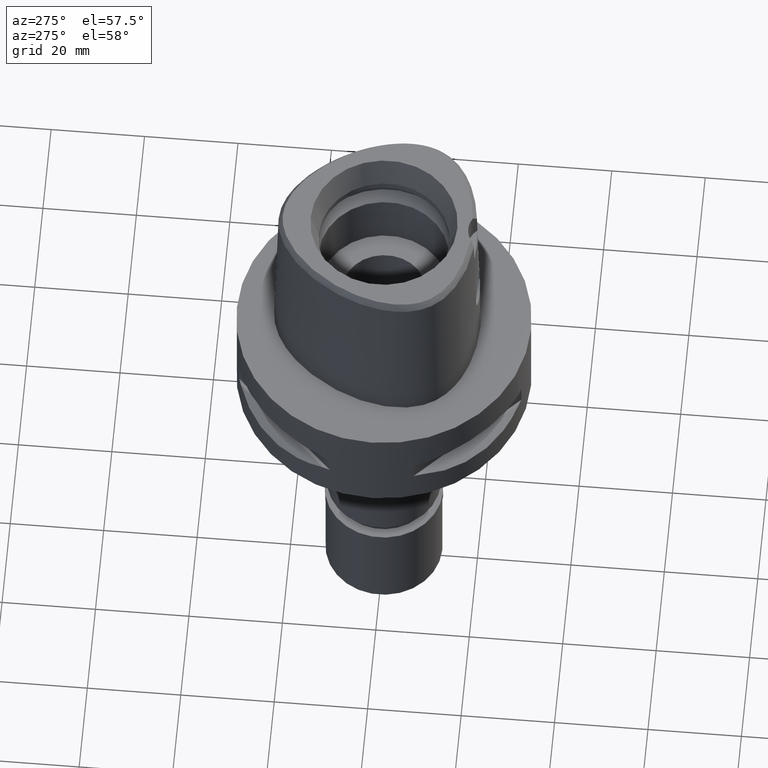
[diagram: clean part render]
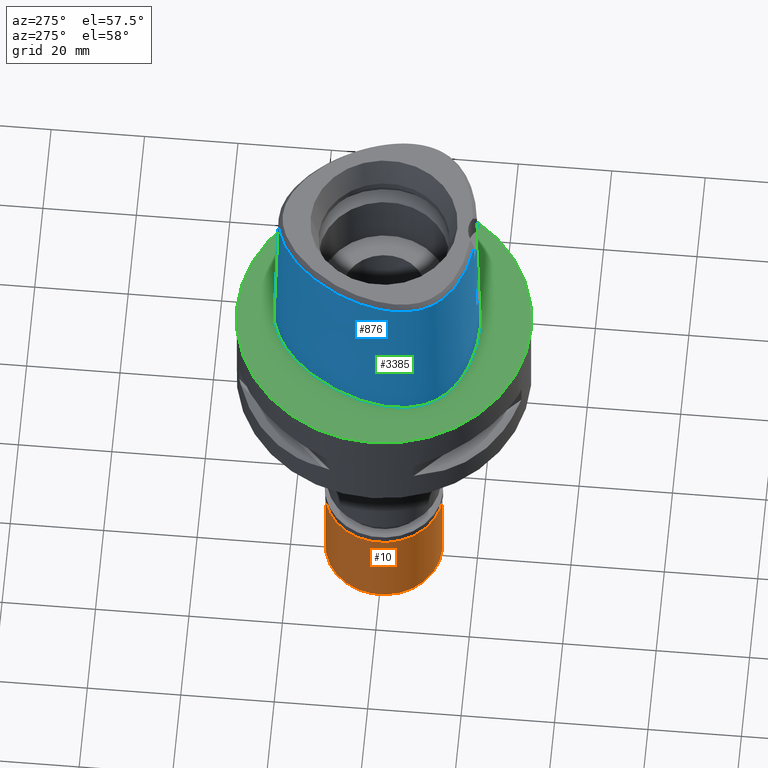
[diagram: same view with three faces highlighted in distinct colors, each labeled with its STEP entity id]
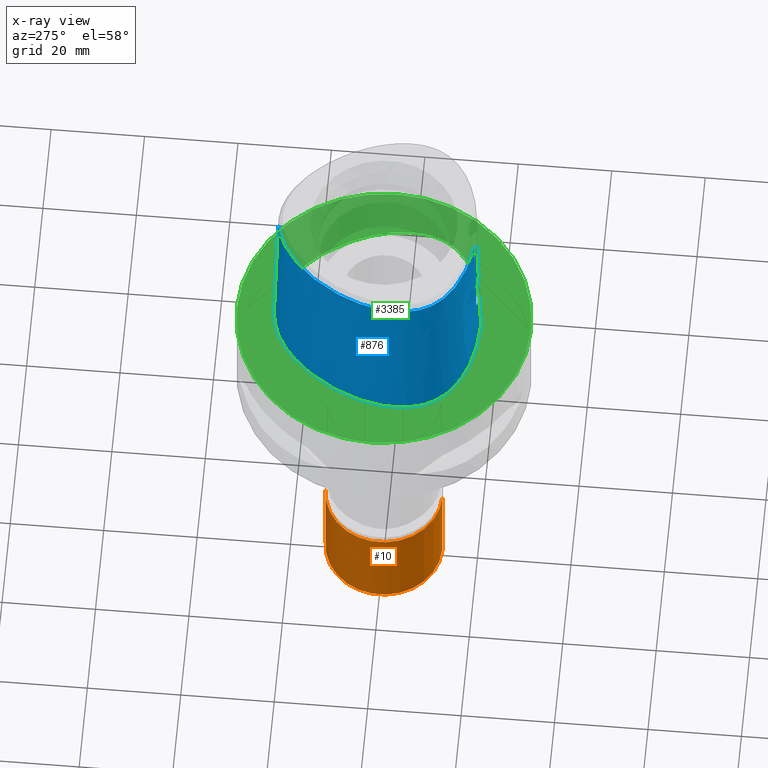
[diagram: x-ray of the same camera — body ghosted, the three highlighted faces saturated]
A machine part, auxiliary view with three faces highlighted in distinct colors.
The next image is the same camera in x-ray (body ghosted, the three faces saturated) — at least one of them is partly hidden behind the body in this view.
Their STEP definitions:

[orange] entity #10 — the highlighted cylindrical surface (partial cylindrical patch) has radius 12.5 mm, axis along (0, 0, -1).
#10 = ADVANCED_FACE ( 'NONE', ( #3239 ), #3290, .T. ) ;
#36 = CARTESIAN_POINT ( 'NONE',  ( 0.0000000000000000000, -12.50000000000000000, -2.100000000000000089 ) ) ;
#268 = ORIENTED_EDGE ( 'NONE', *, *, #1319, .T. ) ;
#469 = VERTEX_POINT ( 'NONE', #3411 ) ;
#477 = CARTESIAN_POINT ( 'NONE',  ( 0.0000000000000000000, 0.0000000000000000000, -2.100000000000000089 ) ) ;
#730 = ORIENTED_EDGE ( 'NONE', *, *, #4245, .T. ) ;
#747 = VERTEX_POINT ( 'NONE', #1795 ) ;
#858 = DIRECTION ( 'NONE',  ( 0.0000000000000000000, 0.0000000000000000000, -1.000000000000000000 ) ) ;
#1053 = AXIS2_PLACEMENT_3D ( 'NONE', #1271, #2068, #2866 ) ;
#1056 = ORIENTED_EDGE ( 'NONE', *, *, #2048, .T. ) ;
#1199 = VERTEX_POINT ( 'NONE', #3916 ) ;
#1271 = CARTESIAN_POINT ( 'NONE',  ( 0.0000000000000000000, 0.0000000000000000000, 0.0000000000000000000 ) ) ;
#1319 = EDGE_CURVE ( 'NONE', #3557, #1199, #3271, .T. ) ;
#1656 = LINE ( 'NONE', #36, #2715 ) ;
#1795 = CARTESIAN_POINT ( 'NONE',  ( 0.0000000000000000000, -12.50000000000000000, -2.100000000000000089 ) ) ;
#1931 = ORIENTED_EDGE ( 'NONE', *, *, #4446, .F. ) ;
#1934 = VECTOR ( 'NONE', #2536, 1000.000000000000000 ) ;
#1967 = DIRECTION ( 'NONE',  ( 0.0000000000000000000, -1.000000000000000000, 0.0000000000000000000 ) ) ;
#2048 = EDGE_CURVE ( 'NONE', #747, #3557, #3529, .T. ) ;
#2068 = DIRECTION ( 'NONE',  ( 0.0000000000000000000, 0.0000000000000000000, -1.000000000000000000 ) ) ;
#2462 = DIRECTION ( 'NONE',  ( 0.0000000000000000000, 0.0000000000000000000, 1.000000000000000000 ) ) ;
#2536 = DIRECTION ( 'NONE',  ( 0.0000000000000000000, 0.0000000000000000000, -1.000000000000000000 ) ) ;
#2715 = VECTOR ( 'NONE', #3500, 1000.000000000000000 ) ;
#2866 = DIRECTION ( 'NONE',  ( 0.0000000000000000000, -1.000000000000000000, 0.0000000000000000000 ) ) ;
#2880 = CIRCLE ( 'NONE', #4797, 12.50000000000000000 ) ;
#3001 = EDGE_LOOP ( 'NONE', ( #730, #1931, #1056, #268 ) ) ;
#3057 = AXIS2_PLACEMENT_3D ( 'NONE', #477, #858, #1967 ) ;
#3239 = FACE_OUTER_BOUND ( 'NONE', #3001, .T. ) ;
#3242 = DIRECTION ( 'NONE',  ( 0.0000000000000000000, 1.000000000000000000, 0.0000000000000000000 ) ) ;
#3271 = LINE ( 'NONE', #3624, #1934 ) ;
#3290 = CYLINDRICAL_SURFACE ( 'NONE', #1053, 12.50000000000000000 ) ;
#3411 = CARTESIAN_POINT ( 'NONE',  ( 0.0000000000000000000, -12.50000000000000000, -22.89999999999999858 ) ) ;
#3500 = DIRECTION ( 'NONE',  ( 0.0000000000000000000, 0.0000000000000000000, -1.000000000000000000 ) ) ;
#3529 = CIRCLE ( 'NONE', #3057, 12.50000000000000000 ) ;
#3557 = VERTEX_POINT ( 'NONE', #3960 ) ;
#3624 = CARTESIAN_POINT ( 'NONE',  ( 0.0000000000000000000, 12.50000000000000000, -2.100000000000000089 ) ) ;
#3916 = CARTESIAN_POINT ( 'NONE',  ( 0.0000000000000000000, 12.50000000000000000, -22.89999999999999858 ) ) ;
#3960 = CARTESIAN_POINT ( 'NONE',  ( 0.0000000000000000000, 12.50000000000000000, -2.100000000000000089 ) ) ;
#3962 = CARTESIAN_POINT ( 'NONE',  ( 0.0000000000000000000, 0.0000000000000000000, -22.89999999999999858 ) ) ;
#4245 = EDGE_CURVE ( 'NONE', #1199, #469, #2880, .T. ) ;
#4446 = EDGE_CURVE ( 'NONE', #747, #469, #1656, .T. ) ;
#4797 = AXIS2_PLACEMENT_3D ( 'NONE', #3962, #2462, #3242 ) ;

[blue] entity #876 — the highlighted face is a freeform B-spline surface patch.
#7 = LINE ( 'NONE', #360, #1698 ) ;
#34 = CARTESIAN_POINT ( 'NONE',  ( -21.07430010672671727, -0.4408303445192858216, 36.52186244848007846 ) ) ;
#54 = CARTESIAN_POINT ( 'NONE',  ( -18.90964971337917433, -12.28759719904485515, 36.52186244848007846 ) ) ;
#86 = CARTESIAN_POINT ( 'NONE',  ( -21.32871527669944456, -4.105831244393725932, 36.52186244848007846 ) ) ;
#95 = VERTEX_POINT ( 'NONE', #398 ) ;
#149 = EDGE_CURVE ( 'NONE', #3852, #1748, #237, .T. ) ;
#155 = CARTESIAN_POINT ( 'NONE',  ( -3.538029056165846509, -20.05893062327526621, 17.47481775326744113 ) ) ;
#166 = CARTESIAN_POINT ( 'NONE',  ( -20.46725053161999952, 4.555493680873999196, 11.93047864450999995 ) ) ;
#184 = CARTESIAN_POINT ( 'NONE',  ( -4.000927221588382210, -20.04208148377432153, 16.14235809081394635 ) ) ;
#191 = CARTESIAN_POINT ( 'NONE',  ( -20.16779751909999518, 4.447573709555999955, 24.59139475704000333 ) ) ;
#206 = CARTESIAN_POINT ( 'NONE',  ( -2.139795632157915684, -20.13619945463955219, 18.93891220839399026 ) ) ;
#212 = CARTESIAN_POINT ( 'NONE',  ( -18.89485300815999835, -12.27684390043000029, 37.25231086958000049 ) ) ;
#230 = CARTESIAN_POINT ( 'NONE',  ( -1.942511500016516290, -20.14483646775817505, 19.05436919695220510 ) ) ;
#235 = CARTESIAN_POINT ( 'NONE',  ( -19.64947365061150109, -12.82525390041814006, 3.961989510884063315E-07 ) ) ;
#237 = B_SPLINE_CURVE_WITH_KNOTS ( 'NONE', 3,
 ( #4850, #2947, #2569, #669 ),
 .UNSPECIFIED., .F., .F.,
 ( 4, 4 ),
 ( 0.0000000000000000000, 1.000000000000000000 ),
 .UNSPECIFIED. ) ;
#239 = CARTESIAN_POINT ( 'NONE',  ( -21.31039852050999883, -4.105938495921999554, 37.25231086958000049 ) ) ;
#255 = CARTESIAN_POINT ( 'NONE',  ( -2.093752964483913015, -20.13827006262202701, 18.96698002592549059 ) ) ;
#263 = CARTESIAN_POINT ( 'NONE',  ( -22.07548128586000047, -6.850245534728999885, -0.7304374680310000700 ) ) ;
#283 = CARTESIAN_POINT ( 'NONE',  ( -3.378390900463339008, -20.18047920803157069, 13.26637903256858841 ) ) ;
#286 = CARTESIAN_POINT ( 'NONE',  ( -5.098437013586353928, 22.52602538139820254, 3.961989510884063315E-07 ) ) ;
#304 = CARTESIAN_POINT ( 'NONE',  ( -2.086978290693807025, -20.31270092342546008, 12.02657741057071661 ) ) ;
#329 = CARTESIAN_POINT ( 'NONE',  ( -1.638500254464691164, -20.34202489575005046, 11.79604700464739864 ) ) ;
#336 = CARTESIAN_POINT ( 'NONE',  ( -14.52531267946000071, -16.95413756378999892, 11.93047864450999995 ) ) ;
#360 = CARTESIAN_POINT ( 'NONE',  ( -1.574543175628000215E-11, 22.56201468012000078, 36.52186680743999858 ) ) ;
#374 = CARTESIAN_POINT ( 'NONE',  ( -3.646836020275710410, -20.14171045812461713, 13.73346198750058100 ) ) ;
#382 = CARTESIAN_POINT ( 'NONE',  ( -6.344715575757000181, -20.31619964444000104, -0.7304374680310000700 ) ) ;
#391 = VERTEX_POINT ( 'NONE', #2877 ) ;
#398 = CARTESIAN_POINT ( 'NONE',  ( -1.131694550467999927E-11, -20.67499999999999716, 1.488068927338999721E-13 ) ) ;
#441 = CARTESIAN_POINT ( 'NONE',  ( -0.5985508230246999739, 23.20171286481000195, 11.93047864450999995 ) ) ;
#485 = VECTOR ( 'NONE', #4844, 1000.000000000000114 ) ;
#520 = CARTESIAN_POINT ( 'NONE',  ( -7.300578999876362829, -19.07170748891811485, 36.52186244848007846 ) ) ;
#522 = CARTESIAN_POINT ( 'NONE',  ( 2.041042029990999821E-08, -19.88004246002000031, 31.80000004972000127 ) ) ;
#541 = CARTESIAN_POINT ( 'NONE',  ( -19.15132538609999813, -12.46323161482999886, 24.59139475704000333 ) ) ;
#560 = CARTESIAN_POINT ( 'NONE',  ( -4.019571720748293941, -20.04316385331960859, 16.01229760803275681 ) ) ;
#568 = CARTESIAN_POINT ( 'NONE',  ( -10.75753573473000024, 19.18839675345000018, -0.7304374680310000700 ) ) ;
#590 = CARTESIAN_POINT ( 'NONE',  ( -4.048198548691897436, -20.04948742386073590, 15.62496296514492755 ) ) ;
#596 = CARTESIAN_POINT ( 'NONE',  ( -21.62788420036000048, -4.104079497307999702, 24.59139475704000333 ) ) ;
#612 = CARTESIAN_POINT ( 'NONE',  ( -1.515693961805478995, -20.16085602489246398, 19.25569561036461153 ) ) ;
#617 = CARTESIAN_POINT ( 'NONE',  ( -21.68301110806000054, -0.3332743865255000104, 11.93047864450999995 ) ) ;
#633 = CARTESIAN_POINT ( 'NONE',  ( -2.002411518437843707, -20.14229940476294090, 19.02105893399036063 ) ) ;
#638 = CARTESIAN_POINT ( 'NONE',  ( -14.67337963928112821, -17.21410155387033925, 3.961989510884063315E-07 ) ) ;
#641 = CARTESIAN_POINT ( 'NONE',  ( -21.13154906879999828, -6.714587103788000277, 37.25231086958000049 ) ) ;
#659 = CARTESIAN_POINT ( 'NONE',  ( -3.521011169345658498, -20.16057871302737681, 13.49750028717983774 ) ) ;
#669 = CARTESIAN_POINT ( 'NONE',  ( -3.736722311398999796, -19.67781602443999844, 31.80000000000000071 ) ) ;
#683 = CARTESIAN_POINT ( 'NONE',  ( -3.765419383810436393, -20.12204246540857255, 14.00846937286263127 ) ) ;
#692 = CARTESIAN_POINT ( 'NONE',  ( -1.853278701395000061, -20.08023943164999991, 24.59139475704000333 ) ) ;
#710 = CARTESIAN_POINT ( 'NONE',  ( -10.74572890418390259, 19.17433592987496027, 3.961989510884063315E-07 ) ) ;
#714 = CARTESIAN_POINT ( 'NONE',  ( 0.4560943669427999780, -20.69106767951000236, -0.7304374680310000700 ) ) ;
#745 = CARTESIAN_POINT ( 'NONE',  ( 6.839695464753724994E-09, -20.08420636276293436, 23.63333344114103340 ) ) ;
#748 = EDGE_LOOP ( 'NONE', ( #1984, #4041, #1155, #2009, #2056, #4416, #4037, #2560 ) ) ;
#760 = CARTESIAN_POINT ( 'NONE',  ( -2.875481281530258837, -20.24105621140764910, 12.64795228381852432 ) ) ;
#768 = CARTESIAN_POINT ( 'NONE',  ( -6.232237615518999796, -19.68961197084999881, 24.59139475704000333 ) ) ;
#826 = CARTESIAN_POINT ( 'NONE',  ( 0.4823619555376999490, 23.48603817685999928, -0.7304374680310000700 ) ) ;
#843 = EDGE_CURVE ( 'NONE', #3852, #1686, #1918, .T. ) ;
#874 = CARTESIAN_POINT ( 'NONE',  ( 0.7234356448029999331, 23.47140592140999615, -0.7304374680310000700 ) ) ;
#876 = ADVANCED_FACE ( 'NONE', ( #4704 ), #4771, .T. ) ;
#920 = CARTESIAN_POINT ( 'NONE',  ( -1.319284162867574217, -20.16701362633693506, 19.33020551927502950 ) ) ;
#929 = CARTESIAN_POINT ( 'NONE',  ( -19.66427014197999767, -12.83600704362000045, -0.7304374680310000700 ) ) ;
#952 = CARTESIAN_POINT ( 'NONE',  ( -16.77374388856000209, -15.44292480528999967, 11.93047864450999995 ) ) ;
#975 = CARTESIAN_POINT ( 'NONE',  ( -2.186319051418601500, -20.13404494128904787, 18.90923049425676794 ) ) ;
#977 = EDGE_CURVE ( 'NONE', #2526, #3154, #3052, .T. ) ;
#985 = CARTESIAN_POINT ( 'NONE',  ( -19.81622840152000009, -11.44090480077000116, 24.59139475704000333 ) ) ;
#999 = CARTESIAN_POINT ( 'NONE',  ( -3.732399541594809911, -20.04857871959458748, 17.07217799705327010 ) ) ;
#1002 = EDGE_CURVE ( 'NONE', #1686, #391, #7, .T. ) ;
#1003 = CARTESIAN_POINT ( 'NONE',  ( -20.93173251305011462, -10.60431640222365424, 3.961989510884063315E-07 ) ) ;
#1005 = CARTESIAN_POINT ( 'NONE',  ( -10.34823249780999888, 18.70095513390999997, 24.59139475704000333 ) ) ;
#1019 = CARTESIAN_POINT ( 'NONE',  ( -2.619825306496439854, -20.11240413268068039, 18.58924275808812254 ) ) ;
#1025 = CARTESIAN_POINT ( 'NONE',  ( -17.53318594399000219, 10.12278939437999981, 24.59139475704000333 ) ) ;
#1044 = CARTESIAN_POINT ( 'NONE',  ( -2.870523645499304166, -20.24159970796213770, 12.64295866390248158 ) ) ;
#1069 = CARTESIAN_POINT ( 'NONE',  ( -3.862388104000367584, -20.10462279265991015, 14.27969005628151677 ) ) ;
#1074 = CARTESIAN_POINT ( 'NONE',  ( -22.05732873337768396, -6.847636717334329326, 3.961989510884063315E-07 ) ) ;
#1090 = CARTESIAN_POINT ( 'NONE',  ( -1.554623920068445297, -20.34671070926031433, 11.76025144506337305 ) ) ;
#1117 = CARTESIAN_POINT ( 'NONE',  ( -1.251533273950246050, -19.88005341380272739, 31.80000012753039940 ) ) ;
#1122 = CARTESIAN_POINT ( 'NONE',  ( -14.36818039036000094, -16.67825740190000161, 24.59139475704000333 ) ) ;
#1140 = B_SPLINE_CURVE_WITH_KNOTS ( 'NONE', 3,
 ( #2898, #2129, #2179, #4352, #4425, #3688, #920, #4824, #2871, #612, #2154, #2513, #1305, #3663, #230, #633, #255, #206, #975, #2464, #1803, #4449, #2442, #1019, #1353, #2534, #4722, #4773, #2073, #2104, #1782, #3592, #4068, #155, #1702, #3221, #4748, #3244, #1328, #999, #2847, #1730, #4376, #3990, #184, #560, #2489, #4025, #590, #1754, #3269, #4798, #3011, #2203, #2583, #1069, #1896, #1843, #683, #2219, #2992, #1446, #3761, #374, #4194, #659, #2966, #2558, #1141, #1508, #283, #3711, #3410, #2243, #4120, #4890, #1822, #4548, #4933, #760, #1044, #3734, #2630, #304, #1469, #4523, #2265, #3339, #329, #3365, #3316, #2939, #1090, #4498, #2605, #4143 ),
 .UNSPECIFIED., .F., .F.,
 ( 4, 2, 2, 1, 1, 1, 2, 2, 2, 2, 1, 2, 2, 2, 1, 1, 1, 2, 2, 2, 2, 2, 1, 1, 2, 2, 2, 2, 1, 2, 2, 2, 2, 1, 1, 1, 2, 2, 2, 2, 1, 1, 2, 2, 2, 1, 1, 1, 2, 2, 2, 2, 2, 1, 1, 2, 2, 4 ),
 ( 0.0000000000000000000, 0.06249999999998449851, 0.09374999999997679634, 0.1093749999999729522, 0.1171874999999710648, 0.1210937499999702460, 0.1230468749999699685, 0.1249999999999696909, 0.1562499999999631961, 0.1718749999999597544, 0.1796874999999580891, 0.1835937499999572564, 0.1874999999999564237, 0.2187499999999492906, 0.2343749999999454880, 0.2421874999999436284, 0.2460937499999423794, 0.2480468749999419908, 0.2499999999999416023, 0.3124999999999310552, 0.3437499999999257261, 0.3593749999999230615, 0.3671874999999217293, 0.3710937499999211187, 0.3730468749999207856, 0.3749999999999204525, 0.4374999999999251155, 0.4687499999999278910, 0.4843749999999292788, 0.4921874999999299449, 0.4999999999999306111, 0.5624999999999348299, 0.5937499999999370504, 0.6093749999999380496, 0.6171874999999384936, 0.6210937499999387157, 0.6230468749999389377, 0.6249999999999391598, 0.6562499999999393818, 0.6718749999999392708, 0.6796874999999394928, 0.6835937499999393818, 0.6855468749999394928, 0.6874999999999397149, 0.7187499999999428235, 0.7343749999999443778, 0.7421874999999452660, 0.7460937499999454880, 0.7480468749999458211, 0.7499999999999460432, 0.8124999999999651390, 0.8437499999999746869, 0.8593749999999794609, 0.8671874999999817923, 0.8710937499999827915, 0.8730468749999832356, 0.8749999999999835687, 1.000000000000000000 ),
 .UNSPECIFIED. ) ;
#1141 = CARTESIAN_POINT ( 'NONE',  ( -3.403984055241810136, -20.17700956931918554, 13.30546169200884954 ) ) ;
#1151 = CARTESIAN_POINT ( 'NONE',  ( 0.6840430852549000962, -20.68668154458000075, -0.7304374680310000700 ) ) ;
#1155 = ORIENTED_EDGE ( 'NONE', *, *, #977, .F. ) ;
#1202 = CARTESIAN_POINT ( 'NONE',  ( -14.22011356155823059, -16.41829364186228801, 36.52186244848007846 ) ) ;
#1232 = CARTESIAN_POINT ( 'NONE',  ( -1.574543175628000215E-11, 22.56201468012000078, 36.52186680743999858 ) ) ;
#1258 = CARTESIAN_POINT ( 'NONE',  ( -19.88562090098653456, 4.345879983791930634, 36.52186244848007846 ) ) ;
#1305 = CARTESIAN_POINT ( 'NONE',  ( -1.654189165904782488, -20.15617929684590237, 19.19855061501283089 ) ) ;
#1313 = CARTESIAN_POINT ( 'NONE',  ( -16.39211280191932474, -14.95758113319031679, 36.52186244848007846 ) ) ;
#1328 = CARTESIAN_POINT ( 'NONE',  ( -3.724125163258915183, -20.04897958010021597, 17.09177419983912927 ) ) ;
#1335 = CARTESIAN_POINT ( 'NONE',  ( -17.88993671088000070, -13.52675035156000050, 37.25231086958000049 ) ) ;
#1353 = CARTESIAN_POINT ( 'NONE',  ( -2.695249874945359725, -20.10832530790569450, 18.52420893039018779 ) ) ;
#1359 = CARTESIAN_POINT ( 'NONE',  ( -21.05621930276000242, -0.4440251252735000209, 37.25231086958000049 ) ) ;
#1383 = CARTESIAN_POINT ( 'NONE',  ( -22.24453906861452168, -4.100468750058213097, 3.961989510884063315E-07 ) ) ;
#1386 = CARTESIAN_POINT ( 'NONE',  ( -13.69241994435000009, 15.03666404624000030, 37.25231086958000049 ) ) ;
#1404 = CARTESIAN_POINT ( 'NONE',  ( -21.55524825056646421, -8.996025387793880057, 3.961989510884063315E-07 ) ) ;
#1408 = CARTESIAN_POINT ( 'NONE',  ( -20.76670354412999941, 4.663413652191000125, -0.7304374680310000700 ) ) ;
#1429 = CARTESIAN_POINT ( 'NONE',  ( -20.65879057091999726, -10.48283623375000140, 11.93047864450999995 ) ) ;
#1446 = CARTESIAN_POINT ( 'NONE',  ( -3.744819199618690586, -20.12554889422251492, 13.95763816694174508 ) ) ;
#1469 = CARTESIAN_POINT ( 'NONE',  ( -1.976093486008362765, -20.32066596632020250, 11.96267829522251702 ) ) ;
#1478 = CARTESIAN_POINT ( 'NONE',  ( -1.836486906116000073, -19.76356485055999812, 37.25231086958000049 ) ) ;
#1496 = CARTESIAN_POINT ( 'NONE',  ( 0.0000000000000000000, -20.18628283968999781, 19.55000000000000071 ) ) ;
#1508 = CARTESIAN_POINT ( 'NONE',  ( -3.388684481479287136, -20.17908678489216356, 13.28202678387132174 ) ) ;
#1519 = CARTESIAN_POINT ( 'NONE',  ( 6.819707265817331304E-09, -19.98212988583487970, 27.71666688228189912 ) ) ;
#1573 = CARTESIAN_POINT ( 'NONE',  ( 0.4441907136239999776, 22.53710807436000252, 37.25231086958000049 ) ) ;
#1578 = EDGE_CURVE ( 'NONE', #2297, #95, #3318, .T. ) ;
#1607 = B_SPLINE_CURVE_WITH_KNOTS ( 'NONE', 3,
 ( #4641, #1117, #1900, #3017 ),
 .UNSPECIFIED., .F., .F.,
 ( 4, 4 ),
 ( 0.0000000000000000000, 1.000000000000000000 ),
 .UNSPECIFIED. ) ;
#1630 = CARTESIAN_POINT ( 'NONE',  ( -4.757642277158472766, 21.67478330407800868, 36.52186244848007846 ) ) ;
#1654 = CARTESIAN_POINT ( 'NONE',  ( -1.574543175628000215E-11, 22.56201468012000078, 36.52186680743999858 ) ) ;
#1655 = CARTESIAN_POINT ( 'NONE',  ( -3.637738201363999835, -19.56971413236999879, 36.52186244848000030 ) ) ;
#1686 = VERTEX_POINT ( 'NONE', #1654 ) ;
#1698 = VECTOR ( 'NONE', #4943, 1000.000000000000227 ) ;
#1702 = CARTESIAN_POINT ( 'NONE',  ( -3.622823166582431309, -20.05423976961980159, 17.31146791136281138 ) ) ;
#1709 = CARTESIAN_POINT ( 'NONE',  ( -10.14358087933999997, 18.45723432415000076, 37.25231086958000049 ) ) ;
#1730 = CARTESIAN_POINT ( 'NONE',  ( -3.739982804493141799, -20.04821444782767870, 17.05405992850905861 ) ) ;
#1736 = CARTESIAN_POINT ( 'NONE',  ( -21.36961520540999970, -0.3886497558994999602, 24.59139475704000333 ) ) ;
#1748 = VERTEX_POINT ( 'NONE', #2394 ) ;
#1754 = CARTESIAN_POINT ( 'NONE',  ( -4.049669244603515850, -20.05092033672185181, 15.56087890933141260 ) ) ;
#1760 = CARTESIAN_POINT ( 'NONE',  ( -0.5821289336313999474, 22.88453108562999816, 24.59139475704000333 ) ) ;
#1782 = CARTESIAN_POINT ( 'NONE',  ( -3.080358908091406445, -20.08588145643774681, 18.14724693106735387 ) ) ;
#1787 = CARTESIAN_POINT ( 'NONE',  ( -11.23259756387282415, -18.89324217814343143, 3.961989510884063315E-07 ) ) ;
#1790 = CARTESIAN_POINT ( 'NONE',  ( -2.438150643219000102, 22.68791658383999987, 24.59139475704000333 ) ) ;
#1803 = CARTESIAN_POINT ( 'NONE',  ( -2.234886754065561476, -20.13176498206188114, 18.87758146273892024 ) ) ;
#1809 = CARTESIAN_POINT ( 'NONE',  ( -20.96392263606999862, -8.820258354633001119, 24.59139475704000333 ) ) ;
#1822 = CARTESIAN_POINT ( 'NONE',  ( -2.944853313638139625, -20.23338396571917031, 12.71930497746894773 ) ) ;
#1826 = CARTESIAN_POINT ( 'NONE',  ( -18.06826687664396758, 10.43171874502871610, 3.961989510884063315E-07 ) ) ;
#1828 = CARTESIAN_POINT ( 'NONE',  ( -16.38077705006000073, -14.94316476192000032, 37.25231086958000049 ) ) ;
#1843 = CARTESIAN_POINT ( 'NONE',  ( -3.787895502508241918, -20.11815879802899332, 14.06594377818632680 ) ) ;
#1881 = CARTESIAN_POINT ( 'NONE',  ( -14.21104810125000029, -16.40237724000999719, 37.25231086958000049 ) ) ;
#1896 = CARTESIAN_POINT ( 'NONE',  ( -3.830312988835301802, -20.11064039584126562, 14.18100683063531164 ) ) ;
#1900 = CARTESIAN_POINT ( 'NONE',  ( -2.503154198993145840, -19.81241979316497037, 31.80000012753039940 ) ) ;
#1903 = CARTESIAN_POINT ( 'NONE',  ( -1.886862291950999859, -20.71358859382999640, -0.7304374680310000700 ) ) ;
#1916 = EDGE_CURVE ( 'NONE', #3154, #2297, #1140, .T. ) ;
#1918 = B_SPLINE_CURVE_WITH_KNOTS ( 'NONE', 3,
 ( #1655, #3575, #520, #2720, #1202, #1313, #4677, #54, #2367, #1961, #4284, #2832, #86, #34, #1258, #4257, #3892, #3179, #2773, #1630, #2035, #4306, #1232 ),
 .UNSPECIFIED., .F., .F.,
 ( 4, 1, 1, 1, 1, 1, 1, 1, 1, 1, 1, 1, 1, 1, 1, 1, 1, 1, 1, 1, 4 ),
 ( 0.0000000000000000000, 0.03580973941716165954, 0.1234633994701182236, 0.1672902294965439574, 0.2111170595229696911, 0.2549438895495006463, 0.2768573045627134577, 0.2987707195758211309, 0.3206841345891391915, 0.3425975496023521139, 0.3864243796287777366, 0.4302512096552034704, 0.4740780396816292042, 0.5617316997345856988, 0.6493853597875424155, 0.7370390198403937720, 0.8246926798932452396, 0.8685195099196709734, 0.9123463399461282375, 0.9561731699725645184, 1.000000000000000000 ),
 .UNSPECIFIED. ) ;
#1925 = CARTESIAN_POINT ( 'NONE',  ( -11.02138187499999944, -18.31230474339000125, 24.59139475704000333 ) ) ;
#1961 = CARTESIAN_POINT ( 'NONE',  ( -20.09619618740682512, -10.23243843867996894, 36.52186244848007846 ) ) ;
#1974 = CARTESIAN_POINT ( 'NONE',  ( 0.0000000000000000000, -20.18628283968999781, 19.55000000000000071 ) ) ;
#1984 = ORIENTED_EDGE ( 'NONE', *, *, #1578, .F. ) ;
#2009 = ORIENTED_EDGE ( 'NONE', *, *, #4060, .T. ) ;
#2035 = CARTESIAN_POINT ( 'NONE',  ( -2.376843896518291643, 22.39422508474305218, 36.52186244848007846 ) ) ;
#2056 = ORIENTED_EDGE ( 'NONE', *, *, #149, .F. ) ;
#2073 = CARTESIAN_POINT ( 'NONE',  ( -2.851759669098844707, -20.09937848569553509, 18.37576696290483724 ) ) ;
#2081 = CARTESIAN_POINT ( 'NONE',  ( -18.35112161164000000, -13.96357042508999946, 11.93047864450999995 ) ) ;
#2104 = CARTESIAN_POINT ( 'NONE',  ( -2.856735645791463885, -20.09908600051001315, 18.37082797701566861 ) ) ;
#2111 = CARTESIAN_POINT ( 'NONE',  ( -17.80867316128000155, 10.28184213192999863, 11.93047864450999995 ) ) ;
#2129 = CARTESIAN_POINT ( 'NONE',  ( -0.2469614329866336166, -20.18628283969000492, 19.55000000000000071 ) ) ;
#2136 = CARTESIAN_POINT ( 'NONE',  ( -20.09084482102999658, -11.59945466509999967, 11.93047864450999995 ) ) ;
#2154 = CARTESIAN_POINT ( 'NONE',  ( -1.532028322019433064, -20.16031213580587433, 19.24906213926842469 ) ) ;
#2160 = CARTESIAN_POINT ( 'NONE',  ( -22.26285556008000199, -4.100361500079999999, -0.7304374680310000700 ) ) ;
#2179 = CARTESIAN_POINT ( 'NONE',  ( -0.5029957946287598736, -20.18407275070327955, 19.52735814766290190 ) ) ;
#2184 = CARTESIAN_POINT ( 'NONE',  ( -6.341471017451705272, -20.29812499020534844, 3.961989510884063315E-07 ) ) ;
#2186 = CARTESIAN_POINT ( 'NONE',  ( -21.57281238754000086, -9.001246193674999674, -0.7304374680310000700 ) ) ;
#2203 = CARTESIAN_POINT ( 'NONE',  ( -3.952719314284887542, -20.08627108159267394, 14.60781849234319374 ) ) ;
#2215 = CARTESIAN_POINT ( 'NONE',  ( -1.411580633884000040E-12, -20.38876923348000147, 11.44999999999999929 ) ) ;
#2219 = CARTESIAN_POINT ( 'NONE',  ( -3.755513279697367590, -20.12373356563247029, 13.98385409641711519 ) ) ;
#2223 = CARTESIAN_POINT ( 'NONE',  ( -14.40795638197294259, 15.64093749357013685, 3.961989510884063315E-07 ) ) ;
#2227 = CARTESIAN_POINT ( 'NONE',  ( 2.041042029990999821E-08, -19.88004246002000031, 31.80000004972000127 ) ) ;
#2243 = CARTESIAN_POINT ( 'NONE',  ( -3.215141317472925309, -20.20176523512293087, 13.03363163430766924 ) ) ;
#2247 = CARTESIAN_POINT ( 'NONE',  ( -0.8548392415978486314, 23.47499999009464489, 3.961989510884063844E-07 ) ) ;
#2265 = CARTESIAN_POINT ( 'NONE',  ( -1.758538015527786325, -20.33486617637929328, 11.85123085900037943 ) ) ;
#2273 = CARTESIAN_POINT ( 'NONE',  ( 0.4479792516635999755, -20.05810170591000130, 24.59139475704000333 ) ) ;
#2297 = VERTEX_POINT ( 'NONE', #2215 ) ;
#2367 = CARTESIAN_POINT ( 'NONE',  ( -19.55745547455478572, -11.29150218116036797, 36.52186244848007846 ) ) ;
#2394 = CARTESIAN_POINT ( 'NONE',  ( -3.736722311398999796, -19.67781602443999844, 31.80000000000000071 ) ) ;
#2396 = CARTESIAN_POINT ( 'NONE',  ( 0.6850314213256999407, 22.83959066314000097, 24.59139475704000333 ) ) ;
#2442 = CARTESIAN_POINT ( 'NONE',  ( -2.465871155446889951, -20.12050941625071587, 18.71552503715510696 ) ) ;
#2448 = CARTESIAN_POINT ( 'NONE',  ( -2.503210923954999778, 22.99958948127000014, 11.93047864450999995 ) ) ;
#2464 = CARTESIAN_POINT ( 'NONE',  ( -2.217432309316633265, -20.13258995341804081, 18.88907620321008451 ) ) ;
#2471 = CARTESIAN_POINT ( 'NONE',  ( -5.105252914130000264, 22.54305023747000192, -0.7304374680310000700 ) ) ;
#2489 = CARTESIAN_POINT ( 'NONE',  ( -4.038008715512109603, -20.04585748134372025, 15.81813837839393599 ) ) ;
#2498 = CARTESIAN_POINT ( 'NONE',  ( -19.54161198201000005, -11.28235493643999909, 37.25231086958000049 ) ) ;
#2513 = CARTESIAN_POINT ( 'NONE',  ( -1.541739479480927821, -20.15998567653693740, 19.24507551610765432 ) ) ;
#2518 = CARTESIAN_POINT ( 'NONE',  ( -7.580410837477000285, 21.33037925832999804, -0.7304374680310000700 ) ) ;
#2526 = VERTEX_POINT ( 'NONE', #522 ) ;
#2534 = CARTESIAN_POINT ( 'NONE',  ( -2.780368904630674098, -20.10352085876908745, 18.44516150075039107 ) ) ;
#2538 = CARTESIAN_POINT ( 'NONE',  ( -3.637738201363999835, -19.56971413236999879, 36.52186244848000030 ) ) ;
#2540 = CARTESIAN_POINT ( 'NONE',  ( -21.44619314115000108, -6.759806580769001094, 24.59139475704000333 ) ) ;
#2558 = CARTESIAN_POINT ( 'NONE',  ( -3.438708044298173672, -20.17224266693525436, 13.35987361893985437 ) ) ;
#2560 = ORIENTED_EDGE ( 'NONE', *, *, #3913, .T. ) ;
#2567 = CARTESIAN_POINT ( 'NONE',  ( -11.23887130070999874, -18.91049775515000064, -0.7304374680310000700 ) ) ;
#2569 = CARTESIAN_POINT ( 'NONE',  ( -3.704239276368590961, -19.64128040965313460, 33.37395414949332917 ) ) ;
#2583 = CARTESIAN_POINT ( 'NONE',  ( -3.921011200009524966, -20.09315657503184838, 14.47678737886648648 ) ) ;
#2605 = CARTESIAN_POINT ( 'NONE',  ( -0.5044838421625421621, -20.38876923348000147, 11.44999999999999929 ) ) ;
#2613 = CARTESIAN_POINT ( 'NONE',  ( -6.175998635401000136, -19.37631813405999992, 37.25231086958000049 ) ) ;
#2630 = CARTESIAN_POINT ( 'NONE',  ( -2.421633902296543628, -20.28649929376736694, 12.24289074091956486 ) ) ;
#2640 = CARTESIAN_POINT ( 'NONE',  ( -11.13012658785000042, -18.61140124926999917, 11.93047864450999995 ) ) ;
#2720 = CARTESIAN_POINT ( 'NONE',  ( -10.91891098965021634, -18.03046406390791745, 36.52186244848007846 ) ) ;
#2740 = B_SPLINE_CURVE_WITH_KNOTS ( 'NONE', 3,
 ( #4529, #2247, #3717, #286, #4828, #710, #2223, #1826, #4804, #3344, #1383, #1074, #1404, #1003, #4073, #235, #2903, #4052, #638, #1787, #2184, #3115, #3788 ),
 .UNSPECIFIED., .F., .F.,
 ( 4, 1, 1, 1, 1, 1, 1, 1, 1, 1, 1, 1, 1, 1, 1, 1, 1, 1, 1, 1, 4 ),
 ( 0.0000000000000000000, 0.04166666666755999837, 0.08333333333417000666, 0.1250000000007999990, 0.1666666666674000152, 0.2500000000006000200, 0.3333333333337999971, 0.4166666666671000052, 0.5000000000004000134, 0.5416666666670000296, 0.5833333333336000459, 0.6250000000001999512, 0.6458333333335000148, 0.6666666666668999985, 0.6875000000001000311, 0.7083333333333999837, 0.7500000000001000311, 0.7916666666667000474, 0.8333333333333000637, 0.9166666666666000163, 1.000000000000000000 ),
 .UNSPECIFIED. ) ;
#2749 = CARTESIAN_POINT ( 'NONE',  ( 0.4569144609285000214, 22.85341810852000322, 24.59139475704000333 ) ) ;
#2773 = CARTESIAN_POINT ( 'NONE',  ( -7.108589416785630277, 20.52412325828396789, 36.52186244848007846 ) ) ;
#2801 = CARTESIAN_POINT ( 'NONE',  ( 0.7042335330643999525, 23.15549829226999989, 11.93047864450999995 ) ) ;
#2832 = CARTESIAN_POINT ( 'NONE',  ( -21.14970188363690795, -6.717195958887436369, 36.52186244848007846 ) ) ;
#2847 = CARTESIAN_POINT ( 'NONE',  ( -3.737866227672715258, -20.04831574353799439, 17.05913631749739068 ) ) ;
#2854 = CARTESIAN_POINT ( 'NONE',  ( -16.97022730782000366, -15.69280482697000068, -0.7304374680310000700 ) ) ;
#2871 = CARTESIAN_POINT ( 'NONE',  ( -1.491184144463915340, -20.16166538365224525, 19.26555599340024116 ) ) ;
#2877 = CARTESIAN_POINT ( 'NONE',  ( 5.792621513410000046E-11, 23.47499999999000053, 1.460313351723999876E-13 ) ) ;
#2878 = CARTESIAN_POINT ( 'NONE',  ( -4.750826278106000444, 21.65775820194999923, 37.25231086958000049 ) ) ;
#2898 = CARTESIAN_POINT ( 'NONE',  ( 0.0000000000000000000, -20.18628283968999781, 19.55000000000000071 ) ) ;
#2903 = CARTESIAN_POINT ( 'NONE',  ( -18.56841064420521548, -14.16937987598086934, 3.961989510884063315E-07 ) ) ;
#2907 = CARTESIAN_POINT ( 'NONE',  ( -21.99640701070999782, -0.2778990171515000052, -0.7304374680310000700 ) ) ;
#2927 = CARTESIAN_POINT ( 'NONE',  ( -4.987110702122000028, 22.24795289229000161, 11.93047864450999995 ) ) ;
#2939 = CARTESIAN_POINT ( 'NONE',  ( -1.559680536025709330, -20.34643398129692571, 11.76236078098183846 ) ) ;
#2942 = CARTESIAN_POINT ( 'NONE',  ( -1.411580633884000040E-12, -20.38876923348000147, 11.44999999999999929 ) ) ;
#2946 = CARTESIAN_POINT ( 'NONE',  ( -1.870070496672999960, -20.39691401273999816, 11.93047864450999995 ) ) ;
#2947 = CARTESIAN_POINT ( 'NONE',  ( -3.671249123513567802, -19.60525173594972514, 34.94790829898666829 ) ) ;
#2966 = CARTESIAN_POINT ( 'NONE',  ( -3.466836414357303386, -20.16829378023986763, 13.40600824626465482 ) ) ;
#2992 = CARTESIAN_POINT ( 'NONE',  ( -3.748848230554136851, -20.12486689274772544, 13.96744809575480772 ) ) ;
#3011 = CARTESIAN_POINT ( 'NONE',  ( -4.027374356334759042, -20.06789055621375084, 14.99734000115442356 ) ) ;
#3017 = CARTESIAN_POINT ( 'NONE',  ( -3.736722311398999796, -19.67781602443999844, 31.80000000000000071 ) ) ;
#3020 = CARTESIAN_POINT ( 'NONE',  ( 0.4520368093032000600, -20.37458469270999828, 11.93047864450999995 ) ) ;
#3048 = CARTESIAN_POINT ( 'NONE',  ( 0.6718639866857000209, -20.05378907757000206, 24.59139475704000333 ) ) ;
#3052 = B_SPLINE_CURVE_WITH_KNOTS ( 'NONE', 3,
 ( #2227, #1519, #745, #1496 ),
 .UNSPECIFIED., .F., .F.,
 ( 4, 4 ),
 ( 0.0000000000000000000, 1.000000000000000000 ),
 .UNSPECIFIED. ) ;
#3115 = CARTESIAN_POINT ( 'NONE',  ( -2.113823672476196514, -20.67499999009838874, 3.961989510884063315E-07 ) ) ;
#3154 = VERTEX_POINT ( 'NONE', #1974 ) ;
#3179 = CARTESIAN_POINT ( 'NONE',  ( -10.15538788052838548, 18.47129535094270381, 36.52186244848007846 ) ) ;
#3221 = CARTESIAN_POINT ( 'NONE',  ( -3.649262608527146678, -20.05281260871031890, 17.25750946406547826 ) ) ;
#3228 = CARTESIAN_POINT ( 'NONE',  ( -19.86834450658999884, 4.339653738237999825, 37.25231086958000049 ) ) ;
#3244 = CARTESIAN_POINT ( 'NONE',  ( -3.704292559003335761, -20.04995969622513741, 17.13772999897880567 ) ) ;
#3253 = CARTESIAN_POINT ( 'NONE',  ( -21.76083721350000033, -6.805026057749000934, 11.93047864450999995 ) ) ;
#3269 = CARTESIAN_POINT ( 'NONE',  ( -4.050021527008778044, -20.05171394999420542, 15.52761435992195516 ) ) ;
#3275 = CARTESIAN_POINT ( 'NONE',  ( -21.94536988021999946, -4.102220498694000739, 11.93047864450999995 ) ) ;
#3302 = CARTESIAN_POINT ( 'NONE',  ( -4.868968490113999792, 21.95285554711999865, 24.59139475704000333 ) ) ;
#3316 = CARTESIAN_POINT ( 'NONE',  ( -1.572762212919165847, -20.34571465053091188, 11.76784655626087783 ) ) ;
#3318 = LINE ( 'NONE', #2942, #485 ) ;
#3323 = CARTESIAN_POINT ( 'NONE',  ( -20.65947776032999883, -8.729764435113001042, 37.25231086958000049 ) ) ;
#3339 = CARTESIAN_POINT ( 'NONE',  ( -1.678365122368103091, -20.33968670806341805, 11.81401864286996428 ) ) ;
#3344 = CARTESIAN_POINT ( 'NONE',  ( -21.97832646805768775, -0.2810937517328646051, 3.961989510884063315E-07 ) ) ;
#3365 = CARTESIAN_POINT ( 'NONE',  ( -1.592417059067872342, -20.34462664461244685, 11.77614938864827288 ) ) ;
#3410 = CARTESIAN_POINT ( 'NONE',  ( -3.294262190004032753, -20.19177924388688083, 13.14035103666274296 ) ) ;
#3440 = CARTESIAN_POINT ( 'NONE',  ( 0.6657744374011000943, -19.73734284407000317, 37.25231086958000049 ) ) ;
#3575 = CARTESIAN_POINT ( 'NONE',  ( -4.467522189395168652, -19.48130287050798515, 36.52186244848007846 ) ) ;
#3592 = CARTESIAN_POINT ( 'NONE',  ( -3.257868542788270982, -20.07526036167546835, 17.92062957398223233 ) ) ;
#3604 = CARTESIAN_POINT ( 'NONE',  ( -18.12052916125999857, -13.74516038832999953, 24.59139475704000333 ) ) ;
#3630 = CARTESIAN_POINT ( 'NONE',  ( -17.25769872669999927, 9.963736656827000715, 37.25231086958000049 ) ) ;
#3653 = CARTESIAN_POINT ( 'NONE',  ( -19.40779776404000145, -12.64961932922000010, 11.93047864450999995 ) ) ;
#3663 = CARTESIAN_POINT ( 'NONE',  ( -1.766526305029135768, -20.15200016144773443, 19.14684110942555506 ) ) ;
#3668 = CARTESIAN_POINT ( 'NONE',  ( -0.5657070442380000008, 22.56734930645000148, 37.25231086958000049 ) ) ;
#3688 = CARTESIAN_POINT ( 'NONE',  ( -1.220844346623249477, -20.16970717228951315, 19.36221719502150762 ) ) ;
#3697 = CARTESIAN_POINT ( 'NONE',  ( -14.42198651596000047, 15.65278599908999979, -0.7304374680310000700 ) ) ;
#3711 = CARTESIAN_POINT ( 'NONE',  ( -3.372561883828031792, -20.18126453820839217, 13.25759167064568622 ) ) ;
#3717 = CARTESIAN_POINT ( 'NONE',  ( -2.564517724921239417, 23.29328124024891977, 3.961989510884063315E-07 ) ) ;
#3721 = CARTESIAN_POINT ( 'NONE',  ( -6.288476595637999544, -20.00290580764000126, 11.93047864450999995 ) ) ;
#3734 = CARTESIAN_POINT ( 'NONE',  ( -2.647686554476931242, -20.26595620603017878, 12.42012335592380090 ) ) ;
#3761 = CARTESIAN_POINT ( 'NONE',  ( -3.698450170037328899, -20.13337256774288875, 13.84561582814185243 ) ) ;
#3770 = CARTESIAN_POINT ( 'NONE',  ( -14.68244496857000136, -17.23001772569000067, -0.7304374680310000700 ) ) ;
#3788 = CARTESIAN_POINT ( 'NONE',  ( -1.131694550467999927E-11, -20.67499999999999716, 1.488068927338999721E-13 ) ) ;
#3850 = CARTESIAN_POINT ( 'NONE',  ( 0.4696382082330999852, 23.16972814268999770, 11.93047864450999995 ) ) ;
#3852 = VERTEX_POINT ( 'NONE', #2538 ) ;
#3871 = CARTESIAN_POINT ( 'NONE',  ( -0.6149727124180999205, 23.51889464398000129, -0.7304374680310000700 ) ) ;
#3892 = CARTESIAN_POINT ( 'NONE',  ( -13.70645028111173325, 15.04851272300390974, 36.52186244848007846 ) ) ;
#3913 = EDGE_CURVE ( 'NONE', #391, #95, #2740, .T. ) ;
#3971 = CARTESIAN_POINT ( 'NONE',  ( -20.94844325381999894, -10.61175396783999858, -0.7304374680310000700 ) ) ;
#3990 = CARTESIAN_POINT ( 'NONE',  ( -3.925149583928171815, -20.04097452255080114, 16.53241025804316777 ) ) ;
#4003 = CARTESIAN_POINT ( 'NONE',  ( -7.099337874933000059, 20.50831407539999773, 37.25231086958000049 ) ) ;
#4025 = CARTESIAN_POINT ( 'NONE',  ( -4.044846275584056627, -20.04747181378232312, 15.72129022903788886 ) ) ;
#4032 = CARTESIAN_POINT ( 'NONE',  ( -20.36546124054000018, -11.75800452942999996, -0.7304374680310000700 ) ) ;
#4037 = ORIENTED_EDGE ( 'NONE', *, *, #1002, .T. ) ;
#4041 = ORIENTED_EDGE ( 'NONE', *, *, #1916, .F. ) ;
#4052 = CARTESIAN_POINT ( 'NONE',  ( -16.95889171979106891, -15.67838866405356057, 3.961989510884063315E-07 ) ) ;
#4054 = CARTESIAN_POINT ( 'NONE',  ( -18.08416037857000092, 10.44089486947999923, -0.7304374680310000700 ) ) ;
#4060 = EDGE_CURVE ( 'NONE', #2526, #1748, #1607, .T. ) ;
#4068 = CARTESIAN_POINT ( 'NONE',  ( -3.474192979750932775, -20.06260368694828600, 17.58570057380752161 ) ) ;
#4073 = CARTESIAN_POINT ( 'NONE',  ( -20.34961797697467389, -11.74885741691099206, 3.961989510884063315E-07 ) ) ;
#4075 = CARTESIAN_POINT ( 'NONE',  ( -14.17879765875999887, 15.44741201480999848, 11.93047864450999995 ) ) ;
#4106 = CARTESIAN_POINT ( 'NONE',  ( -10.91263716214000112, -18.01320823750999978, 37.25231086958000049 ) ) ;
#4120 = CARTESIAN_POINT ( 'NONE',  ( -3.088891886257598696, -20.21687891846143970, 12.87976173475305153 ) ) ;
#4143 = CARTESIAN_POINT ( 'NONE',  ( -1.411580633884000040E-12, -20.38876923348000147, 11.44999999999999929 ) ) ;
#4194 = CARTESIAN_POINT ( 'NONE',  ( -3.554351686460422322, -20.15567894312340513, 13.55745618683840448 ) ) ;
#4257 = CARTESIAN_POINT ( 'NONE',  ( -17.27359245833158496, 9.972912913899117271, 36.52186244848007846 ) ) ;
#4284 = CARTESIAN_POINT ( 'NONE',  ( -20.67704215115443844, -8.734985316449309423, 36.52186244848007846 ) ) ;
#4306 = CARTESIAN_POINT ( 'NONE',  ( -0.7901461696976761484, 22.56201478746740108, 36.52186244848007846 ) ) ;
#4335 = CARTESIAN_POINT ( 'NONE',  ( 0.6658293095871000711, 22.52368303400000116, 37.25231086958000049 ) ) ;
#4352 = CARTESIAN_POINT ( 'NONE',  ( -0.8930805521986885376, -20.17744248374308569, 19.45252283130972870 ) ) ;
#4358 = CARTESIAN_POINT ( 'NONE',  ( -20.07948520512000101, -10.22500076556999993, 37.25231086958000049 ) ) ;
#4376 = CARTESIAN_POINT ( 'NONE',  ( -3.848091180349238360, -20.04309007828490152, 16.79232384212873086 ) ) ;
#4383 = CARTESIAN_POINT ( 'NONE',  ( -10.55288411627000045, 18.94467594368000007, 11.93047864450999995 ) ) ;
#4409 = CARTESIAN_POINT ( 'NONE',  ( -20.36913788801999914, -10.35391849966000066, 24.59139475704000333 ) ) ;
#4416 = ORIENTED_EDGE ( 'NONE', *, *, #843, .T. ) ;
#4425 = CARTESIAN_POINT ( 'NONE',  ( -1.024085210915641087, -20.17467987250966388, 19.42077540820573134 ) ) ;
#4432 = CARTESIAN_POINT ( 'NONE',  ( -21.26836751180000107, -8.910752274154001285, 11.93047864450999995 ) ) ;
#4449 = CARTESIAN_POINT ( 'NONE',  ( -2.359092717380831594, -20.12584311732416609, 18.79466286145666487 ) ) ;
#4454 = CARTESIAN_POINT ( 'NONE',  ( -7.420053183295999943, 21.05635753067999971, 11.93047864450999995 ) ) ;
#4498 = CARTESIAN_POINT ( 'NONE',  ( -1.035110057030296016, -20.37489425641783569, 11.54558794255215304 ) ) ;
#4523 = CARTESIAN_POINT ( 'NONE',  ( -1.812578444510769771, -20.33146028017538853, 11.87773110335130511 ) ) ;
#4529 = CARTESIAN_POINT ( 'NONE',  ( 5.792621513410000046E-11, 23.47499999999000053, 1.460313351723999876E-13 ) ) ;
#4532 = CARTESIAN_POINT ( 'NONE',  ( 0.6779535359703000585, -20.37023531107999830, 11.93047864450999995 ) ) ;
#4548 = CARTESIAN_POINT ( 'NONE',  ( -2.904566963643297584, -20.23785596388084329, 12.67750603328435410 ) ) ;
#4578 = CARTESIAN_POINT ( 'NONE',  ( 0.4439216940240000020, -19.74161871911000077, 37.25231086958000049 ) ) ;
#4641 = CARTESIAN_POINT ( 'NONE',  ( 2.041042029990999821E-08, -19.88004246002000031, 31.80000004972000127 ) ) ;
#4677 = CARTESIAN_POINT ( 'NONE',  ( -17.90324032096637907, -13.53935111955283865, 36.52186244848007846 ) ) ;
#4704 = FACE_OUTER_BOUND ( 'NONE', #748, .T. ) ;
#4722 = CARTESIAN_POINT ( 'NONE',  ( -2.822190190633990792, -20.10110717914268719, 18.40486219678740198 ) ) ;
#4748 = CARTESIAN_POINT ( 'NONE',  ( -3.686373852813733087, -20.05087655280961201, 17.17750174153702503 ) ) ;
#4755 = CARTESIAN_POINT ( 'NONE',  ( -18.58171406201999787, -14.18198046186000028, -0.7304374680310000700 ) ) ;
#4771 = B_SPLINE_SURFACE_WITH_KNOTS ( 'NONE', 3, 3, ( 
 ( #874, #2801, #2396, #4335 ),
 ( #826, #3850, #2749, #1573 ),
 ( #3871, #441, #1760, #3668 ),
 ( #4849, #2448, #1790, #4780 ),
 ( #2471, #2927, #3302, #2878 ),
 ( #2518, #4454, #4806, #4003 ),
 ( #568, #4383, #1005, #1709 ),
 ( #3697, #4075, #4830, #1386 ),
 ( #4054, #2111, #1025, #3630 ),
 ( #1408, #166, #191, #3228 ),
 ( #2907, #617, #1736, #1359 ),
 ( #2160, #3275, #596, #239 ),
 ( #263, #3253, #2540, #641 ),
 ( #2186, #4432, #1809, #3323 ),
 ( #3971, #1429, #4409, #4358 ),
 ( #4032, #2136, #985, #2498 ),
 ( #929, #3653, #541, #212 ),
 ( #4755, #2081, #3604, #1335 ),
 ( #2854, #952, #4922, #1828 ),
 ( #3770, #336, #1122, #1881 ),
 ( #2567, #2640, #1925, #4106 ),
 ( #382, #3721, #768, #2613 ),
 ( #1903, #2946, #692, #1478 ),
 ( #714, #3020, #2273, #4578 ),
 ( #1151, #4532, #3048, #3440 ) ),
 .UNSPECIFIED., .F., .F., .F.,
 ( 4, 1, 1, 1, 1, 1, 1, 1, 1, 1, 1, 1, 1, 1, 1, 1, 1, 1, 1, 1, 1, 1, 4 ),
 ( 4, 4 ),
 ( -0.01173777939052999923, 0.0000000000000000000, 0.04166666666755999837, 0.08333333333417000666, 0.1250000000007999990, 0.1666666666674000152, 0.2500000000006000200, 0.3333333333337999971, 0.4166666666671000052, 0.5000000000004000134, 0.5416666666670000296, 0.5833333333336000459, 0.6250000000001999512, 0.6458333333335000148, 0.6666666666668999985, 0.6875000000001000311, 0.7083333333333999837, 0.7500000000001000311, 0.7916666666667000474, 0.8333333333333000637, 0.9166666666666000163, 1.000000000000000000, 1.008985696609000060 ),
 ( 6.963590645087000188E-09, 0.9999996448567999296 ),
 .UNSPECIFIED. ) ;
#4773 = CARTESIAN_POINT ( 'NONE',  ( -2.839953375062578278, -20.10007029036177073, 18.38742682378347482 ) ) ;
#4780 = CARTESIAN_POINT ( 'NONE',  ( -2.373090362481999893, 22.37624368642000050, 37.25231086958000049 ) ) ;
#4798 = CARTESIAN_POINT ( 'NONE',  ( -4.049817818464482855, -20.05867147921259175, 15.25213178463970110 ) ) ;
#4804 = CARTESIAN_POINT ( 'NONE',  ( -20.74942739942207126, 4.657187496622488432, 3.961989510884063315E-07 ) ) ;
#4806 = CARTESIAN_POINT ( 'NONE',  ( -7.259695529114000401, 20.78233580303999872, 24.59139475704000333 ) ) ;
#4824 = CARTESIAN_POINT ( 'NONE',  ( -1.433941617826418824, -20.16350856333453123, 19.28793663981547013 ) ) ;
#4828 = CARTESIAN_POINT ( 'NONE',  ( -7.571159429333091495, 21.31457030392907015, 3.961989510884063315E-07 ) ) ;
#4830 = CARTESIAN_POINT ( 'NONE',  ( -13.93560880154999992, 15.24203803052000161, 24.59139475704000333 ) ) ;
#4844 = DIRECTION ( 'NONE',  ( -8.648271886520810958E-13, -0.02499051295360945474, -0.9996876883618780463 ) ) ;
#4849 = CARTESIAN_POINT ( 'NONE',  ( -2.568271204691999987, 23.31126237870000040, -0.7304374680310000700 ) ) ;
#4850 = CARTESIAN_POINT ( 'NONE',  ( -3.637738201363999835, -19.56971413236999879, 36.52186244848000030 ) ) ;
#4890 = CARTESIAN_POINT ( 'NONE',  ( -3.023876335322789100, -20.22446943425180521, 12.80437821783579722 ) ) ;
#4922 = CARTESIAN_POINT ( 'NONE',  ( -16.57726046931000141, -15.19304478359999955, 24.59139475704000333 ) ) ;
#4933 = CARTESIAN_POINT ( 'NONE',  ( -2.887137300738132684, -20.23977569147040612, 12.65975230261630813 ) ) ;
#4943 = DIRECTION ( 'NONE',  ( 2.016562810604959560E-12, 0.02499051290953949525, -0.9996876883629797206 ) ) ;

[green] entity #3385 — the highlighted planar face has unit normal (0, 0, -1).
#95 = VERTEX_POINT ( 'NONE', #398 ) ;
#165 = CARTESIAN_POINT ( 'NONE',  ( 0.0000000000000000000, 0.0000000000000000000, 0.0000000000000000000 ) ) ;
#181 = FACE_BOUND ( 'NONE', #694, .T. ) ;
#204 = DIRECTION ( 'NONE',  ( 0.0000000000000000000, -1.000000000000000000, 0.0000000000000000000 ) ) ;
#235 = CARTESIAN_POINT ( 'NONE',  ( -19.64947365061150109, -12.82525390041814006, 3.961989510884063315E-07 ) ) ;
#241 = AXIS2_PLACEMENT_3D ( 'NONE', #4871, #4479, #4899 ) ;
#279 = CARTESIAN_POINT ( 'NONE',  ( 2.113823673617677201, -20.67500000926077774, -3.706362569557297868E-07 ) ) ;
#286 = CARTESIAN_POINT ( 'NONE',  ( -5.098437013586353928, 22.52602538139820254, 3.961989510884063315E-07 ) ) ;
#377 = EDGE_CURVE ( 'NONE', #4189, #2191, #4084, .T. ) ;
#391 = VERTEX_POINT ( 'NONE', #2877 ) ;
#398 = CARTESIAN_POINT ( 'NONE',  ( -1.131694550467999927E-11, -20.67499999999999716, 1.488068927338999721E-13 ) ) ;
#409 = CARTESIAN_POINT ( 'NONE',  ( 18.06826689333558278, 10.43171875465824172, -3.706362569557298398E-07 ) ) ;
#480 = CIRCLE ( 'NONE', #241, 31.50000000000000000 ) ;
#587 = CARTESIAN_POINT ( 'NONE',  ( 0.0000000000000000000, 0.0000000000000000000, 0.0000000000000000000 ) ) ;
#588 = AXIS2_PLACEMENT_3D ( 'NONE', #587, #3588, #204 ) ;
#638 = CARTESIAN_POINT ( 'NONE',  ( -14.67337963928112821, -17.21410155387033925, 3.961989510884063315E-07 ) ) ;
#654 = CARTESIAN_POINT ( 'NONE',  ( 20.93173253059621786, -10.60431641002068304, -3.706362569557298398E-07 ) ) ;
#694 = EDGE_LOOP ( 'NONE', ( #4208, #2165 ) ) ;
#710 = CARTESIAN_POINT ( 'NONE',  ( -10.74572890418390259, 19.17433592987496027, 3.961989510884063315E-07 ) ) ;
#1003 = CARTESIAN_POINT ( 'NONE',  ( -20.93173251305011462, -10.60431640222365424, 3.961989510884063315E-07 ) ) ;
#1008 = EDGE_CURVE ( 'NONE', #2191, #4189, #480, .T. ) ;
#1038 = CARTESIAN_POINT ( 'NONE',  ( 6.341471020858127083, -20.29812500917696383, -3.706362569557298927E-07 ) ) ;
#1074 = CARTESIAN_POINT ( 'NONE',  ( -22.05732873337768396, -6.847636717334329326, 3.961989510884063315E-07 ) ) ;
#1274 = PLANE ( 'NONE',  #588 ) ;
#1277 = CARTESIAN_POINT ( 'NONE',  ( 2.564517728860519430, 23.29328125912352121, -3.706362569557298398E-07 ) ) ;
#1350 = CARTESIAN_POINT ( 'NONE',  ( -1.131694550467999927E-11, -20.67499999999999716, 1.488068927338999721E-13 ) ) ;
#1383 = CARTESIAN_POINT ( 'NONE',  ( -22.24453906861452168, -4.100468750058213097, 3.961989510884063315E-07 ) ) ;
#1404 = CARTESIAN_POINT ( 'NONE',  ( -21.55524825056646421, -8.996025387793880057, 3.961989510884063315E-07 ) ) ;
#1418 = CARTESIAN_POINT ( 'NONE',  ( 19.64947366613950663, -12.82525391170535656, -3.706362569557298398E-07 ) ) ;
#1568 = CARTESIAN_POINT ( 'NONE',  ( 5.098437020742769832, 22.52602539926908065, -3.706362569557298398E-07 ) ) ;
#1635 = ORIENTED_EDGE ( 'NONE', *, *, #377, .F. ) ;
#1708 = DIRECTION ( 'NONE',  ( 0.0000000000000000000, 0.0000000000000000000, -1.000000000000000000 ) ) ;
#1735 = DIRECTION ( 'NONE',  ( 0.0000000000000000000, -1.000000000000000000, 0.0000000000000000000 ) ) ;
#1787 = CARTESIAN_POINT ( 'NONE',  ( -11.23259756387282415, -18.89324217814343143, 3.961989510884063315E-07 ) ) ;
#1819 = CARTESIAN_POINT ( 'NONE',  ( 11.23259757045801166, -18.89324219624920786, -3.706362569557298398E-07 ) ) ;
#1826 = CARTESIAN_POINT ( 'NONE',  ( -18.06826687664396758, 10.43171874502871610, 3.961989510884063315E-07 ) ) ;
#1847 = AXIS2_PLACEMENT_3D ( 'NONE', #165, #1708, #1735 ) ;
#1951 = CARTESIAN_POINT ( 'NONE',  ( 5.792621513410000046E-11, 23.47499999999000053, 1.460313351723999876E-13 ) ) ;
#2049 = B_SPLINE_CURVE_WITH_KNOTS ( 'NONE', 3,
 ( #1350, #279, #1038, #1819, #2936, #3335, #2199, #1418, #4466, #654, #2553, #4092, #3708, #3462, #4249, #409, #3942, #4327, #3093, #1568, #1277, #3168, #1951 ),
 .UNSPECIFIED., .F., .F.,
 ( 4, 1, 1, 1, 1, 1, 1, 1, 1, 1, 1, 1, 1, 1, 1, 1, 1, 1, 1, 1, 4 ),
 ( 0.0000000000000000000, 0.08333333333344000726, 0.1666666666668000230, 0.2083333333333000081, 0.2500000000000000000, 0.2916666666666999919, 0.3125000000000000000, 0.3333333333333000081, 0.3541666666666999919, 0.3750000000000000000, 0.4166666666666000163, 0.4583333333332000326, 0.4999999999998999689, 0.5833333333332000326, 0.6666666666664999852, 0.7499999999998000488, 0.8333333333329999704, 0.8749999999997000177, 0.9166666666664000651, 0.9583333333329999704, 1.000000000000000000 ),
 .UNSPECIFIED. ) ;
#2165 = ORIENTED_EDGE ( 'NONE', *, *, #3021, .F. ) ;
#2184 = CARTESIAN_POINT ( 'NONE',  ( -6.341471017451705272, -20.29812499020534844, 3.961989510884063315E-07 ) ) ;
#2191 = VERTEX_POINT ( 'NONE', #3359 ) ;
#2199 = CARTESIAN_POINT ( 'NONE',  ( 18.56841065816537295, -14.16937988919912783, -3.706362569557298398E-07 ) ) ;
#2223 = CARTESIAN_POINT ( 'NONE',  ( -14.40795638197294259, 15.64093749357013685, 3.961989510884063315E-07 ) ) ;
#2247 = CARTESIAN_POINT ( 'NONE',  ( -0.8548392415978486314, 23.47499999009464489, 3.961989510884063844E-07 ) ) ;
#2487 = FACE_OUTER_BOUND ( 'NONE', #4339, .T. ) ;
#2553 = CARTESIAN_POINT ( 'NONE',  ( 21.55524826901233837, -8.996025393274063475, -3.706362569557298398E-07 ) ) ;
#2740 = B_SPLINE_CURVE_WITH_KNOTS ( 'NONE', 3,
 ( #4529, #2247, #3717, #286, #4828, #710, #2223, #1826, #4804, #3344, #1383, #1074, #1404, #1003, #4073, #235, #2903, #4052, #638, #1787, #2184, #3115, #3788 ),
 .UNSPECIFIED., .F., .F.,
 ( 4, 1, 1, 1, 1, 1, 1, 1, 1, 1, 1, 1, 1, 1, 1, 1, 1, 1, 1, 1, 4 ),
 ( 0.0000000000000000000, 0.04166666666755999837, 0.08333333333417000666, 0.1250000000007999990, 0.1666666666674000152, 0.2500000000006000200, 0.3333333333337999971, 0.4166666666671000052, 0.5000000000004000134, 0.5416666666670000296, 0.5833333333336000459, 0.6250000000001999512, 0.6458333333335000148, 0.6666666666668999985, 0.6875000000001000311, 0.7083333333333999837, 0.7500000000001000311, 0.7916666666667000474, 0.8333333333333000637, 0.9166666666666000163, 1.000000000000000000 ),
 .UNSPECIFIED. ) ;
#2877 = CARTESIAN_POINT ( 'NONE',  ( 5.792621513410000046E-11, 23.47499999999000053, 1.460313351723999876E-13 ) ) ;
#2903 = CARTESIAN_POINT ( 'NONE',  ( -18.56841064420521548, -14.16937987598086934, 3.961989510884063315E-07 ) ) ;
#2936 = CARTESIAN_POINT ( 'NONE',  ( 14.67337964879238399, -17.21410157057825430, -3.706362569557298398E-07 ) ) ;
#3021 = EDGE_CURVE ( 'NONE', #95, #391, #2049, .T. ) ;
#3093 = CARTESIAN_POINT ( 'NONE',  ( 7.571159439045547224, 21.31457032052076173, -3.706362569557298398E-07 ) ) ;
#3115 = CARTESIAN_POINT ( 'NONE',  ( -2.113823672476196514, -20.67499999009838874, 3.961989510884063315E-07 ) ) ;
#3168 = CARTESIAN_POINT ( 'NONE',  ( 0.8548392429650701896, 23.47500000926667241, -3.706362569557298398E-07 ) ) ;
#3335 = CARTESIAN_POINT ( 'NONE',  ( 16.95889173168474784, -15.67838867918921686, -3.706362569557298398E-07 ) ) ;
#3344 = CARTESIAN_POINT ( 'NONE',  ( -21.97832646805768775, -0.2810937517328646051, 3.961989510884063315E-07 ) ) ;
#3359 = CARTESIAN_POINT ( 'NONE',  ( 0.0000000000000000000, 31.50000000000000000, 0.0000000000000000000 ) ) ;
#3385 = ADVANCED_FACE ( 'NONE', ( #2487, #181 ), #1274, .F. ) ;
#3462 = CARTESIAN_POINT ( 'NONE',  ( 21.97832648704262937, -0.2810937483789625602, -3.706362569557298398E-07 ) ) ;
#3514 = CARTESIAN_POINT ( 'NONE',  ( 0.0000000000000000000, -31.50000000000000000, 0.0000000000000000000 ) ) ;
#3588 = DIRECTION ( 'NONE',  ( 0.0000000000000000000, 0.0000000000000000000, -1.000000000000000000 ) ) ;
#3708 = CARTESIAN_POINT ( 'NONE',  ( 22.24453908783870304, -4.100468749945560987, -3.706362569557298398E-07 ) ) ;
#3717 = CARTESIAN_POINT ( 'NONE',  ( -2.564517724921239417, 23.29328124024891977, 3.961989510884063315E-07 ) ) ;
#3788 = CARTESIAN_POINT ( 'NONE',  ( -1.131694550467999927E-11, -20.67499999999999716, 1.488068927338999721E-13 ) ) ;
#3913 = EDGE_CURVE ( 'NONE', #391, #95, #2740, .T. ) ;
#3942 = CARTESIAN_POINT ( 'NONE',  ( 14.40795639670257167, 15.64093750601981725, -3.706362569557298398E-07 ) ) ;
#4008 = ORIENTED_EDGE ( 'NONE', *, *, #1008, .F. ) ;
#4052 = CARTESIAN_POINT ( 'NONE',  ( -16.95889171979106891, -15.67838866405356057, 3.961989510884063315E-07 ) ) ;
#4073 = CARTESIAN_POINT ( 'NONE',  ( -20.34961797697467389, -11.74885741691099206, 3.961989510884063315E-07 ) ) ;
#4084 = CIRCLE ( 'NONE', #1847, 31.50000000000000000 ) ;
#4092 = CARTESIAN_POINT ( 'NONE',  ( 22.05732875243455382, -6.847636720073275285, -3.706362569557298398E-07 ) ) ;
#4189 = VERTEX_POINT ( 'NONE', #3514 ) ;
#4208 = ORIENTED_EDGE ( 'NONE', *, *, #3913, .F. ) ;
#4249 = CARTESIAN_POINT ( 'NONE',  ( 20.74942741756196796, 4.657187503159310182, -3.706362569557298398E-07 ) ) ;
#4327 = CARTESIAN_POINT ( 'NONE',  ( 10.74572891658366913, 19.17433594463643587, -3.706362569557298398E-07 ) ) ;
#4339 = EDGE_LOOP ( 'NONE', ( #4008, #1635 ) ) ;
#4466 = CARTESIAN_POINT ( 'NONE',  ( 20.34961799361028767, -11.74885742651042086, -3.706362569557298398E-07 ) ) ;
#4479 = DIRECTION ( 'NONE',  ( 0.0000000000000000000, 0.0000000000000000000, -1.000000000000000000 ) ) ;
#4529 = CARTESIAN_POINT ( 'NONE',  ( 5.792621513410000046E-11, 23.47499999999000053, 1.460313351723999876E-13 ) ) ;
#4804 = CARTESIAN_POINT ( 'NONE',  ( -20.74942739942207126, 4.657187496622488432, 3.961989510884063315E-07 ) ) ;
#4828 = CARTESIAN_POINT ( 'NONE',  ( -7.571159429333091495, 21.31457030392907015, 3.961989510884063315E-07 ) ) ;
#4871 = CARTESIAN_POINT ( 'NONE',  ( 0.0000000000000000000, 0.0000000000000000000, 0.0000000000000000000 ) ) ;
#4899 = DIRECTION ( 'NONE',  ( 0.0000000000000000000, 1.000000000000000000, 0.0000000000000000000 ) ) ;